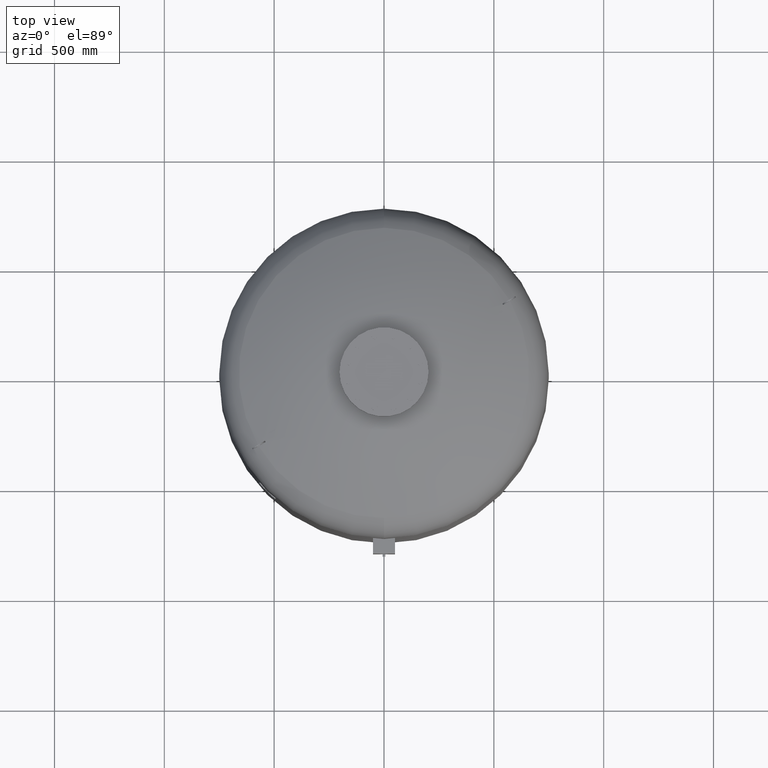
[diagram: clean part render]
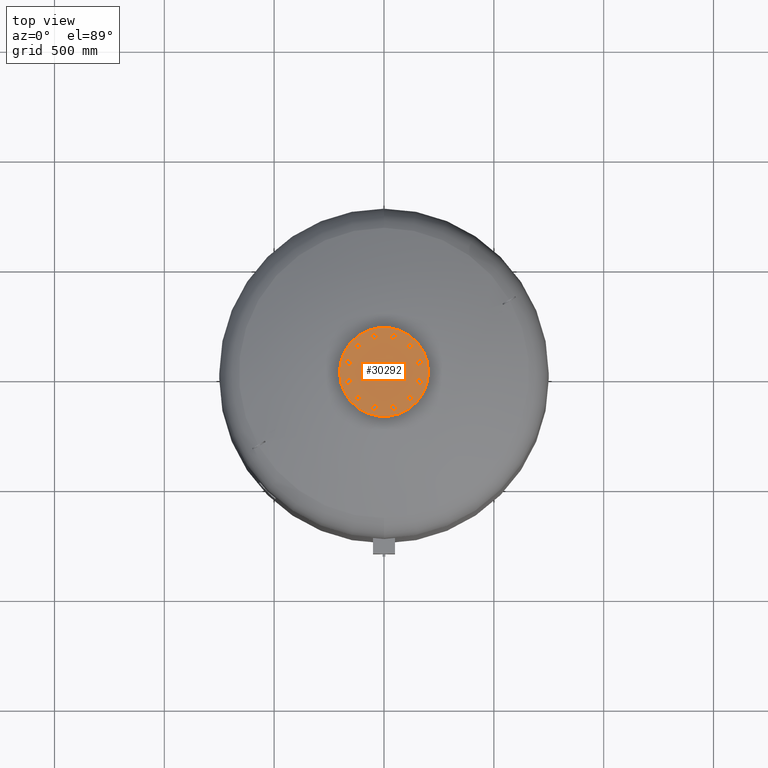
[diagram: same view with one face highlighted and labeled with its STEP entity id]
A machine part, top view. The second image highlights one B-rep face of the part: STEP entity #30292.
In plain terms, the highlighted planar face has unit normal (0, 0, 1).
Its self-contained STEP definition (entity closure, byte-faithful):
#21808=CARTESIAN_POINT('',(202.500000000000000,0.0,2520.0));
#21809=VERTEX_POINT('',#21808);
#21825=CARTESIAN_POINT('',(-202.500000000000000,2.479828E-014,2520.0));
#21826=VERTEX_POINT('',#21825);
#21833=CARTESIAN_POINT('',(0.0,0.0,2520.0));
#21834=DIRECTION('',(0.0,0.0,-1.0));
#21835=DIRECTION('',(1.0,0.0,0.0));
#21836=AXIS2_PLACEMENT_3D('',#21833,#21834,#21835);
#21837=CIRCLE('',#21836,202.500000000000000);
#21838=EDGE_CURVE('',#21826,#21809,#21837,.T.);
#27786=CARTESIAN_POINT('',(-157.729139400922860,-30.104983413641008,2520.0));
#27787=VERTEX_POINT('',#27786);
#27788=CARTESIAN_POINT('',(-148.288440171855850,-40.247625971983268,2520.0));
#27789=VERTEX_POINT('',#27788);
#27790=CARTESIAN_POINT('',(-157.729139400922860,-30.104983413641008,2520.0));
#27791=DIRECTION('',(0.681323780155013,-0.731982176419128,0.0));
#27792=VECTOR('',#27791,13.856406460551090);
#27793=LINE('',#27790,#27792);
#27794=EDGE_CURVE('',#27787,#27789,#27793,.T.);
#27826=CARTESIAN_POINT('',(-171.233275132485970,-33.209547496330110,2520.0));
#27827=VERTEX_POINT('',#27826);
#27828=CARTESIAN_POINT('',(-171.233275132485970,-33.209547496330110,2520.0));
#27829=DIRECTION('',(0.974577049973894,0.224052613607123,0.0));
#27830=VECTOR('',#27829,13.856406460551119);
#27831=LINE('',#27828,#27830);
#27832=EDGE_CURVE('',#27827,#27787,#27831,.T.);
#27857=CARTESIAN_POINT('',(-175.296711634982050,-46.456754137361422,2520.0));
#27858=VERTEX_POINT('',#27857);
#27859=CARTESIAN_POINT('',(-175.296711634982050,-46.456754137361422,2520.0));
#27860=DIRECTION('',(0.293253269818881,0.956034790026249,0.0));
#27861=VECTOR('',#27860,13.856406460551076);
#27862=LINE('',#27859,#27861);
#27863=EDGE_CURVE('',#27858,#27827,#27862,.T.);
#27888=CARTESIAN_POINT('',(-152.351876674351930,-53.494832613014587,2520.0));
#27889=VERTEX_POINT('',#27888);
#27890=CARTESIAN_POINT('',(-148.288440171855850,-40.247625971983268,2520.0));
#27891=DIRECTION('',(-0.293253269818881,-0.956034790026249,0.0));
#27892=VECTOR('',#27891,13.856406460551083);
#27893=LINE('',#27890,#27892);
#27894=EDGE_CURVE('',#27789,#27889,#27893,.T.);
#27919=CARTESIAN_POINT('',(-165.856012405915040,-56.599396695703689,2520.0));
#27920=VERTEX_POINT('',#27919);
#27921=CARTESIAN_POINT('',(-152.351876674351930,-53.494832613014587,2520.0));
#27922=DIRECTION('',(-0.974577049973894,-0.224052613607123,0.0));
#27923=VECTOR('',#27922,13.856406460551119);
#27924=LINE('',#27921,#27923);
#27925=EDGE_CURVE('',#27889,#27920,#27924,.T.);
#27950=CARTESIAN_POINT('',(-165.856012405915040,-56.599396695703689,2520.0));
#27951=DIRECTION('',(-0.681323780155012,0.731982176419129,0.0));
#27952=VECTOR('',#27951,13.856406460551096);
#27953=LINE('',#27950,#27952);
#27954=EDGE_CURVE('',#27920,#27858,#27953,.T.);
#27986=CARTESIAN_POINT('',(-121.544949931435720,-104.936250117183760,2520.0));
#27987=VERTEX_POINT('',#27986);
#27988=CARTESIAN_POINT('',(-108.297743290404380,-108.999686619679820,2520.0));
#27989=VERTEX_POINT('',#27988);
#27990=CARTESIAN_POINT('',(-121.544949931435720,-104.936250117183760,2520.0));
#27991=DIRECTION('',(0.956034790026250,-0.293253269818880,0.0));
#27992=VECTOR('',#27991,13.856406460551101);
#27993=LINE('',#27990,#27992);
#27994=EDGE_CURVE('',#27987,#27989,#27993,.T.);
#28026=CARTESIAN_POINT('',(-131.687592489777960,-114.376949346250780,2520.0));
#28027=VERTEX_POINT('',#28026);
#28028=CARTESIAN_POINT('',(-131.687592489777960,-114.376949346250780,2520.0));
#28029=DIRECTION('',(0.731982176419127,0.681323780155014,0.0));
#28030=VECTOR('',#28029,13.856406460551080);
#28031=LINE('',#28028,#28030);
#28032=EDGE_CURVE('',#28027,#27987,#28031,.T.);
#28057=CARTESIAN_POINT('',(-128.583028407088880,-127.881085077813880,2520.0));
#28058=VERTEX_POINT('',#28057);
#28059=CARTESIAN_POINT('',(-128.583028407088880,-127.881085077813880,2520.0));
#28060=DIRECTION('',(-0.224052613607122,0.974577049973894,0.0));
#28061=VECTOR('',#28060,13.856406460551099);
#28062=LINE('',#28059,#28061);
#28063=EDGE_CURVE('',#28058,#28027,#28062,.T.);
#28088=CARTESIAN_POINT('',(-105.193179207715300,-122.503822351242900,2520.0));
#28089=VERTEX_POINT('',#28088);
#28090=CARTESIAN_POINT('',(-108.297743290404380,-108.999686619679820,2520.0));
#28091=DIRECTION('',(0.224052613607122,-0.974577049973894,0.0));
#28092=VECTOR('',#28091,13.856406460551087);
#28093=LINE('',#28090,#28092);
#28094=EDGE_CURVE('',#27989,#28089,#28093,.T.);
#28119=CARTESIAN_POINT('',(-115.335821766057560,-131.944521580309950,2520.0));
#28120=VERTEX_POINT('',#28119);
#28121=CARTESIAN_POINT('',(-105.193179207715300,-122.503822351242900,2520.0));
#28122=DIRECTION('',(-0.731982176419127,-0.681323780155014,0.0));
#28123=VECTOR('',#28122,13.856406460551121);
#28124=LINE('',#28121,#28123);
#28125=EDGE_CURVE('',#28089,#28120,#28124,.T.);
#28150=CARTESIAN_POINT('',(-115.335821766057560,-131.944521580309950,2520.0));
#28151=DIRECTION('',(-0.956034790026249,0.293253269818881,0.0));
#28152=VECTOR('',#28151,13.856406460551076);
#28153=LINE('',#28150,#28152);
#28154=EDGE_CURVE('',#28120,#28058,#28153,.T.);
#28186=CARTESIAN_POINT('',(-52.792889283739193,-151.649933345076730,2520.0));
#28187=VERTEX_POINT('',#28186);
#28188=CARTESIAN_POINT('',(-39.288753552176118,-148.545369262387680,2520.0));
#28189=VERTEX_POINT('',#28188);
#28190=CARTESIAN_POINT('',(-52.792889283739193,-151.649933345076730,2520.0));
#28191=DIRECTION('',(0.974577049973894,0.224052613607120,0.0));
#28192=VECTOR('',#28191,13.856406460551073);
#28193=LINE('',#28190,#28192);
#28194=EDGE_CURVE('',#28187,#28189,#28193,.T.);
#28226=CARTESIAN_POINT('',(-56.856325786235274,-164.897139986108100,2520.0));
#28227=VERTEX_POINT('',#28226);
#28228=CARTESIAN_POINT('',(-56.856325786235274,-164.897139986108100,2520.0));
#28229=DIRECTION('',(0.293253269818881,0.956034790026249,0.0));
#28230=VECTOR('',#28229,13.856406460551133);
#28231=LINE('',#28228,#28230);
#28232=EDGE_CURVE('',#28227,#28187,#28231,.T.);
#28257=CARTESIAN_POINT('',(-47.415626557168267,-175.039782544450330,2520.0));
#28258=VERTEX_POINT('',#28257);
#28259=CARTESIAN_POINT('',(-47.415626557168267,-175.039782544450330,2520.0));
#28260=DIRECTION('',(-0.681323780155014,0.731982176419128,0.0));
#28261=VECTOR('',#28260,13.856406460551069);
#28262=LINE('',#28259,#28261);
#28263=EDGE_CURVE('',#28258,#28227,#28262,.T.);
#28288=CARTESIAN_POINT('',(-29.848054323109103,-158.688011820729910,2520.0));
#28289=VERTEX_POINT('',#28288);
#28290=CARTESIAN_POINT('',(-39.288753552176118,-148.545369262387680,2520.0));
#28291=DIRECTION('',(0.681323780155014,-0.731982176419127,0.0));
#28292=VECTOR('',#28291,13.856406460551076);
#28293=LINE('',#28290,#28292);
#28294=EDGE_CURVE('',#28189,#28289,#28293,.T.);
#28319=CARTESIAN_POINT('',(-33.911490825605156,-171.935218461761250,2520.0));
#28320=VERTEX_POINT('',#28319);
#28321=CARTESIAN_POINT('',(-29.848054323109103,-158.688011820729910,2520.0));
#28322=DIRECTION('',(-0.293253269818879,-0.956034790026250,0.0));
#28323=VECTOR('',#28322,13.856406460551097);
#28324=LINE('',#28321,#28323);
#28325=EDGE_CURVE('',#28289,#28320,#28324,.T.);
#28350=CARTESIAN_POINT('',(-33.911490825605156,-171.935218461761250,2520.0));
#28351=DIRECTION('',(-0.974577049973894,-0.224052613607121,0.0));
#28352=VECTOR('',#28351,13.856406460551113);
#28353=LINE('',#28350,#28352);
#28354=EDGE_CURVE('',#28320,#28258,#28353,.T.);
#28386=CARTESIAN_POINT('',(30.104983413641008,-157.729139400922860,2520.0));
#28387=VERTEX_POINT('',#28386);
#28388=CARTESIAN_POINT('',(40.247625971983268,-148.288440171855850,2520.0));
#28389=VERTEX_POINT('',#28388);
#28390=CARTESIAN_POINT('',(30.104983413641008,-157.729139400922860,2520.0));
#28391=DIRECTION('',(0.731982176419128,0.681323780155013,0.0));
#28392=VECTOR('',#28391,13.856406460551090);
#28393=LINE('',#28390,#28392);
#28394=EDGE_CURVE('',#28387,#28389,#28393,.T.);
#28426=CARTESIAN_POINT('',(33.209547496330110,-171.233275132485970,2520.0));
#28427=VERTEX_POINT('',#28426);
#28428=CARTESIAN_POINT('',(33.209547496330110,-171.233275132485970,2520.0));
#28429=DIRECTION('',(-0.224052613607123,0.974577049973894,0.0));
#28430=VECTOR('',#28429,13.856406460551119);
#28431=LINE('',#28428,#28430);
#28432=EDGE_CURVE('',#28427,#28387,#28431,.T.);
#28457=CARTESIAN_POINT('',(46.456754137361422,-175.296711634982050,2520.0));
#28458=VERTEX_POINT('',#28457);
#28459=CARTESIAN_POINT('',(46.456754137361422,-175.296711634982050,2520.0));
#28460=DIRECTION('',(-0.956034790026249,0.293253269818881,0.0));
#28461=VECTOR('',#28460,13.856406460551076);
#28462=LINE('',#28459,#28461);
#28463=EDGE_CURVE('',#28458,#28427,#28462,.T.);
#28488=CARTESIAN_POINT('',(53.494832613014587,-152.351876674351930,2520.0));
#28489=VERTEX_POINT('',#28488);
#28490=CARTESIAN_POINT('',(40.247625971983268,-148.288440171855850,2520.0));
#28491=DIRECTION('',(0.956034790026249,-0.293253269818881,0.0));
#28492=VECTOR('',#28491,13.856406460551083);
#28493=LINE('',#28490,#28492);
#28494=EDGE_CURVE('',#28389,#28489,#28493,.T.);
#28519=CARTESIAN_POINT('',(56.599396695703689,-165.856012405915040,2520.0));
#28520=VERTEX_POINT('',#28519);
#28521=CARTESIAN_POINT('',(53.494832613014587,-152.351876674351930,2520.0));
#28522=DIRECTION('',(0.224052613607123,-0.974577049973894,0.0));
#28523=VECTOR('',#28522,13.856406460551119);
#28524=LINE('',#28521,#28523);
#28525=EDGE_CURVE('',#28489,#28520,#28524,.T.);
#28550=CARTESIAN_POINT('',(56.599396695703689,-165.856012405915040,2520.0));
#28551=DIRECTION('',(-0.731982176419129,-0.681323780155012,0.0));
#28552=VECTOR('',#28551,13.856406460551096);
#28553=LINE('',#28550,#28552);
#28554=EDGE_CURVE('',#28520,#28458,#28553,.T.);
#28586=CARTESIAN_POINT('',(104.936250117183700,-121.544949931435750,2520.0));
#28587=VERTEX_POINT('',#28586);
#28588=CARTESIAN_POINT('',(108.999686619679760,-108.297743290404440,2520.0));
#28589=VERTEX_POINT('',#28588);
#28590=CARTESIAN_POINT('',(104.936250117183700,-121.544949931435750,2520.0));
#28591=DIRECTION('',(0.293253269818880,0.956034790026249,0.0));
#28592=VECTOR('',#28591,13.856406460551073);
#28593=LINE('',#28590,#28592);
#28594=EDGE_CURVE('',#28587,#28589,#28593,.T.);
#28626=CARTESIAN_POINT('',(114.376949346250730,-131.687592489778010,2520.0));
#28627=VERTEX_POINT('',#28626);
#28628=CARTESIAN_POINT('',(114.376949346250730,-131.687592489778010,2520.0));
#28629=DIRECTION('',(-0.681323780155013,0.731982176419128,0.0));
#28630=VECTOR('',#28629,13.856406460551101);
#28631=LINE('',#28628,#28630);
#28632=EDGE_CURVE('',#28627,#28587,#28631,.T.);
#28657=CARTESIAN_POINT('',(127.881085077813810,-128.583028407088930,2520.0));
#28658=VERTEX_POINT('',#28657);
#28659=CARTESIAN_POINT('',(127.881085077813810,-128.583028407088930,2520.0));
#28660=DIRECTION('',(-0.974577049973894,-0.224052613607122,0.0));
#28661=VECTOR('',#28660,13.856406460551087);
#28662=LINE('',#28659,#28661);
#28663=EDGE_CURVE('',#28658,#28627,#28662,.T.);
#28688=CARTESIAN_POINT('',(122.503822351242850,-105.193179207715360,2520.0));
#28689=VERTEX_POINT('',#28688);
#28690=CARTESIAN_POINT('',(108.999686619679760,-108.297743290404440,2520.0));
#28691=DIRECTION('',(0.974577049973894,0.224052613607122,0.0));
#28692=VECTOR('',#28691,13.856406460551087);
#28693=LINE('',#28690,#28692);
#28694=EDGE_CURVE('',#28589,#28689,#28693,.T.);
#28719=CARTESIAN_POINT('',(131.944521580309900,-115.335821766057620,2520.0));
#28720=VERTEX_POINT('',#28719);
#28721=CARTESIAN_POINT('',(122.503822351242850,-105.193179207715360,2520.0));
#28722=DIRECTION('',(0.681323780155014,-0.731982176419127,0.0));
#28723=VECTOR('',#28722,13.856406460551121);
#28724=LINE('',#28721,#28723);
#28725=EDGE_CURVE('',#28689,#28720,#28724,.T.);
#28750=CARTESIAN_POINT('',(131.944521580309900,-115.335821766057620,2520.0));
#28751=DIRECTION('',(-0.293253269818882,-0.956034790026249,0.0));
#28752=VECTOR('',#28751,13.856406460551081);
#28753=LINE('',#28750,#28752);
#28754=EDGE_CURVE('',#28720,#28658,#28753,.T.);
#28786=CARTESIAN_POINT('',(151.649933345076730,-52.792889283739214,2520.0));
#28787=VERTEX_POINT('',#28786);
#28788=CARTESIAN_POINT('',(148.545369262387650,-39.288753552176125,2520.0));
#28789=VERTEX_POINT('',#28788);
#28790=CARTESIAN_POINT('',(151.649933345076730,-52.792889283739214,2520.0));
#28791=DIRECTION('',(-0.224052613607122,0.974577049973894,0.0));
#28792=VECTOR('',#28791,13.856406460551092);
#28793=LINE('',#28790,#28792);
#28794=EDGE_CURVE('',#28787,#28789,#28793,.T.);
#28826=CARTESIAN_POINT('',(164.897139986108100,-56.856325786235296,2520.0));
#28827=VERTEX_POINT('',#28826);
#28828=CARTESIAN_POINT('',(164.897139986108100,-56.856325786235296,2520.0));
#28829=DIRECTION('',(-0.956034790026249,0.293253269818881,0.0));
#28830=VECTOR('',#28829,13.856406460551133);
#28831=LINE('',#28828,#28830);
#28832=EDGE_CURVE('',#28827,#28787,#28831,.T.);
#28857=CARTESIAN_POINT('',(175.039782544450300,-47.415626557168260,2520.0));
#28858=VERTEX_POINT('',#28857);
#28859=CARTESIAN_POINT('',(175.039782544450300,-47.415626557168260,2520.0));
#28860=DIRECTION('',(-0.731982176419126,-0.681323780155016,0.0));
#28861=VECTOR('',#28860,13.856406460551069);
#28862=LINE('',#28859,#28861);
#28863=EDGE_CURVE('',#28858,#28827,#28862,.T.);
#28888=CARTESIAN_POINT('',(158.688011820729910,-29.848054323109110,2520.0));
#28889=VERTEX_POINT('',#28888);
#28890=CARTESIAN_POINT('',(148.545369262387650,-39.288753552176125,2520.0));
#28891=DIRECTION('',(0.731982176419128,0.681323780155013,0.0));
#28892=VECTOR('',#28891,13.856406460551096);
#28893=LINE('',#28890,#28892);
#28894=EDGE_CURVE('',#28789,#28889,#28893,.T.);
#28919=CARTESIAN_POINT('',(171.935218461761250,-33.911490825605171,2520.0));
#28920=VERTEX_POINT('',#28919);
#28921=CARTESIAN_POINT('',(158.688011820729910,-29.848054323109110,2520.0));
#28922=DIRECTION('',(0.956034790026250,-0.293253269818880,0.0));
#28923=VECTOR('',#28922,13.856406460551101);
#28924=LINE('',#28921,#28923);
#28925=EDGE_CURVE('',#28889,#28920,#28924,.T.);
#28950=CARTESIAN_POINT('',(171.935218461761250,-33.911490825605171,2520.0));
#28951=DIRECTION('',(0.224052613607120,-0.974577049973894,0.0));
#28952=VECTOR('',#28951,13.856406460551087);
#28953=LINE('',#28950,#28952);
#28954=EDGE_CURVE('',#28920,#28858,#28953,.T.);
#28986=CARTESIAN_POINT('',(157.729139400922860,30.104983413640987,2520.0));
#28987=VERTEX_POINT('',#28986);
#28988=CARTESIAN_POINT('',(148.288440171855850,40.247625971983247,2520.0));
#28989=VERTEX_POINT('',#28988);
#28990=CARTESIAN_POINT('',(157.729139400922860,30.104983413640987,2520.0));
#28991=DIRECTION('',(-0.681323780155013,0.731982176419128,0.0));
#28992=VECTOR('',#28991,13.856406460551090);
#28993=LINE('',#28990,#28992);
#28994=EDGE_CURVE('',#28987,#28989,#28993,.T.);
#29026=CARTESIAN_POINT('',(171.233275132486000,33.209547496330096,2520.0));
#29027=VERTEX_POINT('',#29026);
#29028=CARTESIAN_POINT('',(171.233275132486000,33.209547496330096,2520.0));
#29029=DIRECTION('',(-0.974577049973894,-0.224052613607123,0.0));
#29030=VECTOR('',#29029,13.856406460551147);
#29031=LINE('',#29028,#29030);
#29032=EDGE_CURVE('',#29027,#28987,#29031,.T.);
#29057=CARTESIAN_POINT('',(175.296711634982050,46.456754137361401,2520.0));
#29058=VERTEX_POINT('',#29057);
#29059=CARTESIAN_POINT('',(175.296711634982050,46.456754137361401,2520.0));
#29060=DIRECTION('',(-0.293253269818880,-0.956034790026250,0.0));
#29061=VECTOR('',#29060,13.856406460551062);
#29062=LINE('',#29059,#29061);
#29063=EDGE_CURVE('',#29058,#29027,#29062,.T.);
#29088=CARTESIAN_POINT('',(152.351876674351960,53.494832613014580,2520.0));
#29089=VERTEX_POINT('',#29088);
#29090=CARTESIAN_POINT('',(148.288440171855850,40.247625971983247,2520.0));
#29091=DIRECTION('',(0.293253269818883,0.956034790026249,0.0));
#29092=VECTOR('',#29091,13.856406460551106);
#29093=LINE('',#29090,#29092);
#29094=EDGE_CURVE('',#28989,#29089,#29093,.T.);
#29119=CARTESIAN_POINT('',(165.856012405915070,56.599396695703646,2520.0));
#29120=VERTEX_POINT('',#29119);
#29121=CARTESIAN_POINT('',(152.351876674351960,53.494832613014580,2520.0));
#29122=DIRECTION('',(0.974577049973894,0.224052613607121,0.0));
#29123=VECTOR('',#29122,13.856406460551110);
#29124=LINE('',#29121,#29123);
#29125=EDGE_CURVE('',#29089,#29120,#29124,.T.);
#29150=CARTESIAN_POINT('',(165.856012405915070,56.599396695703646,2520.0));
#29151=DIRECTION('',(0.681323780155012,-0.731982176419129,0.0));
#29152=VECTOR('',#29151,13.856406460551062);
#29153=LINE('',#29150,#29152);
#29154=EDGE_CURVE('',#29120,#29058,#29153,.T.);
#29186=CARTESIAN_POINT('',(121.544949931435750,104.936250117183680,2520.0));
#29187=VERTEX_POINT('',#29186);
#29188=CARTESIAN_POINT('',(108.297743290404440,108.999686619679760,2520.0));
#29189=VERTEX_POINT('',#29188);
#29190=CARTESIAN_POINT('',(121.544949931435750,104.936250117183680,2520.0));
#29191=DIRECTION('',(-0.956034790026249,0.293253269818882,0.0));
#29192=VECTOR('',#29191,13.856406460551081);
#29193=LINE('',#29190,#29192);
#29194=EDGE_CURVE('',#29187,#29189,#29193,.T.);
#29226=CARTESIAN_POINT('',(131.687592489778010,114.376949346250730,2520.0));
#29227=VERTEX_POINT('',#29226);
#29228=CARTESIAN_POINT('',(131.687592489778010,114.376949346250730,2520.0));
#29229=DIRECTION('',(-0.731982176419127,-0.681323780155014,0.0));
#29230=VECTOR('',#29229,13.856406460551121);
#29231=LINE('',#29228,#29230);
#29232=EDGE_CURVE('',#29227,#29187,#29231,.T.);
#29257=CARTESIAN_POINT('',(128.583028407088930,127.881085077813790,2520.0));
#29258=VERTEX_POINT('',#29257);
#29259=CARTESIAN_POINT('',(128.583028407088930,127.881085077813790,2520.0));
#29260=DIRECTION('',(0.224052613607122,-0.974577049973894,0.0));
#29261=VECTOR('',#29260,13.856406460551071);
#29262=LINE('',#29259,#29261);
#29263=EDGE_CURVE('',#29258,#29227,#29262,.T.);
#29288=CARTESIAN_POINT('',(105.193179207715360,122.503822351242850,2520.0));
#29289=VERTEX_POINT('',#29288);
#29290=CARTESIAN_POINT('',(108.297743290404440,108.999686619679760,2520.0));
#29291=DIRECTION('',(-0.224052613607122,0.974577049973894,0.0));
#29292=VECTOR('',#29291,13.856406460551087);
#29293=LINE('',#29290,#29292);
#29294=EDGE_CURVE('',#29189,#29289,#29293,.T.);
#29319=CARTESIAN_POINT('',(115.335821766057620,131.944521580309900,2520.0));
#29320=VERTEX_POINT('',#29319);
#29321=CARTESIAN_POINT('',(105.193179207715360,122.503822351242850,2520.0));
#29322=DIRECTION('',(0.731982176419127,0.681323780155014,0.0));
#29323=VECTOR('',#29322,13.856406460551121);
#29324=LINE('',#29321,#29323);
#29325=EDGE_CURVE('',#29289,#29320,#29324,.T.);
#29350=CARTESIAN_POINT('',(115.335821766057620,131.944521580309900,2520.0));
#29351=DIRECTION('',(0.956034790026249,-0.293253269818883,0.0));
#29352=VECTOR('',#29351,13.856406460551085);
#29353=LINE('',#29350,#29352);
#29354=EDGE_CURVE('',#29320,#29258,#29353,.T.);
#29386=CARTESIAN_POINT('',(52.792889283739228,151.649933345076730,2520.0));
#29387=VERTEX_POINT('',#29386);
#29388=CARTESIAN_POINT('',(39.288753552176132,148.545369262387680,2520.0));
#29389=VERTEX_POINT('',#29388);
#29390=CARTESIAN_POINT('',(52.792889283739228,151.649933345076730,2520.0));
#29391=DIRECTION('',(-0.974577049973894,-0.224052613607120,0.0));
#29392=VECTOR('',#29391,13.856406460551094);
#29393=LINE('',#29390,#29392);
#29394=EDGE_CURVE('',#29387,#29389,#29393,.T.);
#29426=CARTESIAN_POINT('',(56.856325786235296,164.897139986108100,2520.0));
#29427=VERTEX_POINT('',#29426);
#29428=CARTESIAN_POINT('',(56.856325786235296,164.897139986108100,2520.0));
#29429=DIRECTION('',(-0.293253269818880,-0.956034790026250,0.0));
#29430=VECTOR('',#29429,13.856406460551129);
#29431=LINE('',#29428,#29430);
#29432=EDGE_CURVE('',#29427,#29387,#29431,.T.);
#29457=CARTESIAN_POINT('',(47.415626557168281,175.039782544450300,2520.0));
#29458=VERTEX_POINT('',#29457);
#29459=CARTESIAN_POINT('',(47.415626557168281,175.039782544450300,2520.0));
#29460=DIRECTION('',(0.681323780155015,-0.731982176419126,0.0));
#29461=VECTOR('',#29460,13.856406460551055);
#29462=LINE('',#29459,#29461);
#29463=EDGE_CURVE('',#29458,#29427,#29462,.T.);
#29488=CARTESIAN_POINT('',(29.848054323109121,158.688011820729910,2520.0));
#29489=VERTEX_POINT('',#29488);
#29490=CARTESIAN_POINT('',(39.288753552176132,148.545369262387680,2520.0));
#29491=DIRECTION('',(-0.681323780155014,0.731982176419127,0.0));
#29492=VECTOR('',#29491,13.856406460551073);
#29493=LINE('',#29490,#29492);
#29494=EDGE_CURVE('',#29389,#29489,#29493,.T.);
#29519=CARTESIAN_POINT('',(33.911490825605199,171.935218461761280,2520.0));
#29520=VERTEX_POINT('',#29519);
#29521=CARTESIAN_POINT('',(29.848054323109121,158.688011820729910,2520.0));
#29522=DIRECTION('',(0.293253269818880,0.956034790026249,0.0));
#29523=VECTOR('',#29522,13.856406460551133);
#29524=LINE('',#29521,#29523);
#29525=EDGE_CURVE('',#29489,#29520,#29524,.T.);
#29550=CARTESIAN_POINT('',(33.911490825605199,171.935218461761280,2520.0));
#29551=DIRECTION('',(0.974577049973895,0.224052613607118,0.0));
#29552=VECTOR('',#29551,13.856406460551074);
#29553=LINE('',#29550,#29552);
#29554=EDGE_CURVE('',#29520,#29458,#29553,.T.);
#29586=CARTESIAN_POINT('',(-30.104983413640952,157.729139400922890,2520.0));
#29587=VERTEX_POINT('',#29586);
#29588=CARTESIAN_POINT('',(-40.247625971983211,148.288440171855880,2520.0));
#29589=VERTEX_POINT('',#29588);
#29590=CARTESIAN_POINT('',(-30.104983413640952,157.729139400922890,2520.0));
#29591=DIRECTION('',(-0.731982176419128,-0.681323780155013,0.0));
#29592=VECTOR('',#29591,13.856406460551090);
#29593=LINE('',#29590,#29592);
#29594=EDGE_CURVE('',#29587,#29589,#29593,.T.);
#29626=CARTESIAN_POINT('',(-33.209547496330039,171.233275132486000,2520.0));
#29627=VERTEX_POINT('',#29626);
#29628=CARTESIAN_POINT('',(-33.209547496330039,171.233275132486000,2520.0));
#29629=DIRECTION('',(0.224052613607122,-0.974577049973894,0.0));
#29630=VECTOR('',#29629,13.856406460551115);
#29631=LINE('',#29628,#29630);
#29632=EDGE_CURVE('',#29627,#29587,#29631,.T.);
#29657=CARTESIAN_POINT('',(-46.456754137361351,175.296711634982070,2520.0));
#29658=VERTEX_POINT('',#29657);
#29659=CARTESIAN_POINT('',(-46.456754137361351,175.296711634982070,2520.0));
#29660=DIRECTION('',(0.956034790026249,-0.293253269818881,0.0));
#29661=VECTOR('',#29660,13.856406460551076);
#29662=LINE('',#29659,#29661);
#29663=EDGE_CURVE('',#29658,#29627,#29662,.T.);
#29688=CARTESIAN_POINT('',(-53.494832613014523,152.351876674351960,2520.0));
#29689=VERTEX_POINT('',#29688);
#29690=CARTESIAN_POINT('',(-40.247625971983211,148.288440171855880,2520.0));
#29691=DIRECTION('',(-0.956034790026249,0.293253269818881,0.0));
#29692=VECTOR('',#29691,13.856406460551076);
#29693=LINE('',#29690,#29692);
#29694=EDGE_CURVE('',#29589,#29689,#29693,.T.);
#29719=CARTESIAN_POINT('',(-56.599396695703625,165.856012405915070,2520.0));
#29720=VERTEX_POINT('',#29719);
#29721=CARTESIAN_POINT('',(-53.494832613014523,152.351876674351960,2520.0));
#29722=DIRECTION('',(-0.224052613607123,0.974577049973894,0.0));
#29723=VECTOR('',#29722,13.856406460551119);
#29724=LINE('',#29721,#29723);
#29725=EDGE_CURVE('',#29689,#29720,#29724,.T.);
#29750=CARTESIAN_POINT('',(-56.599396695703625,165.856012405915070,2520.0));
#29751=DIRECTION('',(0.731982176419129,0.681323780155012,0.0));
#29752=VECTOR('',#29751,13.856406460551101);
#29753=LINE('',#29750,#29752);
#29754=EDGE_CURVE('',#29720,#29658,#29753,.T.);
#29786=CARTESIAN_POINT('',(-104.936250117183660,121.544949931435800,2520.0));
#29787=VERTEX_POINT('',#29786);
#29788=CARTESIAN_POINT('',(-108.999686619679750,108.297743290404470,2520.0));
#29789=VERTEX_POINT('',#29788);
#29790=CARTESIAN_POINT('',(-104.936250117183660,121.544949931435800,2520.0));
#29791=DIRECTION('',(-0.293253269818882,-0.956034790026249,0.0));
#29792=VECTOR('',#29791,13.856406460551094);
#29793=LINE('',#29790,#29792);
#29794=EDGE_CURVE('',#29787,#29789,#29793,.T.);
#29826=CARTESIAN_POINT('',(-114.376949346250710,131.687592489778040,2520.0));
#29827=VERTEX_POINT('',#29826);
#29828=CARTESIAN_POINT('',(-114.376949346250710,131.687592489778040,2520.0));
#29829=DIRECTION('',(0.681323780155015,-0.731982176419126,0.0));
#29830=VECTOR('',#29829,13.856406460551110);
#29831=LINE('',#29828,#29830);
#29832=EDGE_CURVE('',#29827,#29787,#29831,.T.);
#29857=CARTESIAN_POINT('',(-127.881085077813760,128.583028407088960,2520.0));
#29858=VERTEX_POINT('',#29857);
#29859=CARTESIAN_POINT('',(-127.881085077813760,128.583028407088960,2520.0));
#29860=DIRECTION('',(0.974577049973894,0.224052613607122,0.0));
#29861=VECTOR('',#29860,13.856406460551058);
#29862=LINE('',#29859,#29861);
#29863=EDGE_CURVE('',#29858,#29827,#29862,.T.);
#29888=CARTESIAN_POINT('',(-122.503822351242830,105.193179207715390,2520.0));
#29889=VERTEX_POINT('',#29888);
#29890=CARTESIAN_POINT('',(-108.999686619679750,108.297743290404470,2520.0));
#29891=DIRECTION('',(-0.974577049973894,-0.224052613607122,0.0));
#29892=VECTOR('',#29891,13.856406460551087);
#29893=LINE('',#29890,#29892);
#29894=EDGE_CURVE('',#29789,#29889,#29893,.T.);
#29919=CARTESIAN_POINT('',(-131.944521580309870,115.335821766057650,2520.0));
#29920=VERTEX_POINT('',#29919);
#29921=CARTESIAN_POINT('',(-122.503822351242830,105.193179207715390,2520.0));
#29922=DIRECTION('',(-0.681323780155014,0.731982176419127,0.0));
#29923=VECTOR('',#29922,13.856406460551110);
#29924=LINE('',#29921,#29923);
#29925=EDGE_CURVE('',#29889,#29920,#29924,.T.);
#29950=CARTESIAN_POINT('',(-131.944521580309870,115.335821766057650,2520.0));
#29951=DIRECTION('',(0.293253269818883,0.956034790026249,0.0));
#29952=VECTOR('',#29951,13.856406460551085);
#29953=LINE('',#29950,#29952);
#29954=EDGE_CURVE('',#29920,#29858,#29953,.T.);
#29986=CARTESIAN_POINT('',(-151.649933345076730,52.792889283739228,2520.0));
#29987=VERTEX_POINT('',#29986);
#29988=CARTESIAN_POINT('',(-148.545369262387650,39.288753552176139,2520.0));
#29989=VERTEX_POINT('',#29988);
#29990=CARTESIAN_POINT('',(-151.649933345076730,52.792889283739228,2520.0));
#29991=DIRECTION('',(0.224052613607122,-0.974577049973894,0.0));
#29992=VECTOR('',#29991,13.856406460551092);
#29993=LINE('',#29990,#29992);
#29994=EDGE_CURVE('',#29987,#29989,#29993,.T.);
#30026=CARTESIAN_POINT('',(-164.897139986108070,56.856325786235303,2520.0));
#30027=VERTEX_POINT('',#30026);
#30028=CARTESIAN_POINT('',(-164.897139986108070,56.856325786235303,2520.0));
#30029=DIRECTION('',(0.956034790026249,-0.293253269818881,0.0));
#30030=VECTOR('',#30029,13.856406460551105);
#30031=LINE('',#30028,#30030);
#30032=EDGE_CURVE('',#30027,#29987,#30031,.T.);
#30057=CARTESIAN_POINT('',(-175.039782544450300,47.415626557168295,2520.0));
#30058=VERTEX_POINT('',#30057);
#30059=CARTESIAN_POINT('',(-175.039782544450300,47.415626557168295,2520.0));
#30060=DIRECTION('',(0.731982176419128,0.681323780155014,0.0));
#30061=VECTOR('',#30060,13.856406460551069);
#30062=LINE('',#30059,#30061);
#30063=EDGE_CURVE('',#30058,#30027,#30062,.T.);
#30088=CARTESIAN_POINT('',(-158.688011820729910,29.848054323109132,2520.0));
#30089=VERTEX_POINT('',#30088);
#30090=CARTESIAN_POINT('',(-148.545369262387650,39.288753552176139,2520.0));
#30091=DIRECTION('',(-0.731982176419128,-0.681323780155013,0.0));
#30092=VECTOR('',#30091,13.856406460551090);
#30093=LINE('',#30090,#30092);
#30094=EDGE_CURVE('',#29989,#30089,#30093,.T.);
#30119=CARTESIAN_POINT('',(-171.935218461761250,33.911490825605206,2520.0));
#30120=VERTEX_POINT('',#30119);
#30121=CARTESIAN_POINT('',(-158.688011820729910,29.848054323109132,2520.0));
#30122=DIRECTION('',(-0.956034790026249,0.293253269818881,0.0));
#30123=VECTOR('',#30122,13.856406460551105);
#30124=LINE('',#30121,#30123);
#30125=EDGE_CURVE('',#30089,#30120,#30124,.T.);
#30150=CARTESIAN_POINT('',(-171.935218461761250,33.911490825605206,2520.0));
#30151=DIRECTION('',(-0.224052613607120,0.974577049973894,0.0));
#30152=VECTOR('',#30151,13.856406460551087);
#30153=LINE('',#30150,#30152);
#30154=EDGE_CURVE('',#30120,#30058,#30153,.T.);
#30181=CARTESIAN_POINT('',(101.250000000000000,0.0,2520.0));
#30182=DIRECTION('',(0.0,0.0,1.0));
#30183=DIRECTION('',(0.0,-1.0,0.0));
#30184=AXIS2_PLACEMENT_3D('',#30181,#30182,#30183);
#30185=PLANE('',#30184);
#30186=CARTESIAN_POINT('',(0.0,0.0,2520.0));
#30187=DIRECTION('',(0.0,0.0,-1.0));
#30188=DIRECTION('',(1.0,0.0,0.0));
#30189=AXIS2_PLACEMENT_3D('',#30186,#30187,#30188);
#30190=CIRCLE('',#30189,202.500000000000000);
#30191=EDGE_CURVE('',#21809,#21826,#30190,.T.);
#30192=ORIENTED_EDGE('',*,*,#30191,.F.);
#30193=ORIENTED_EDGE('',*,*,#21838,.F.);
#30194=EDGE_LOOP('',(#30192,#30193));
#30195=FACE_OUTER_BOUND('',#30194,.T.);
#30196=ORIENTED_EDGE('',*,*,#27794,.T.);
#30197=ORIENTED_EDGE('',*,*,#27894,.T.);
#30198=ORIENTED_EDGE('',*,*,#27925,.T.);
#30199=ORIENTED_EDGE('',*,*,#27954,.T.);
#30200=ORIENTED_EDGE('',*,*,#27863,.T.);
#30201=ORIENTED_EDGE('',*,*,#27832,.T.);
#30202=EDGE_LOOP('',(#30196,#30197,#30198,#30199,#30200,#30201));
#30203=FACE_BOUND('',#30202,.T.);
#30204=ORIENTED_EDGE('',*,*,#27994,.T.);
#30205=ORIENTED_EDGE('',*,*,#28094,.T.);
#30206=ORIENTED_EDGE('',*,*,#28125,.T.);
#30207=ORIENTED_EDGE('',*,*,#28154,.T.);
#30208=ORIENTED_EDGE('',*,*,#28063,.T.);
#30209=ORIENTED_EDGE('',*,*,#28032,.T.);
#30210=EDGE_LOOP('',(#30204,#30205,#30206,#30207,#30208,#30209));
#30211=FACE_BOUND('',#30210,.T.);
#30212=ORIENTED_EDGE('',*,*,#28194,.T.);
#30213=ORIENTED_EDGE('',*,*,#28294,.T.);
#30214=ORIENTED_EDGE('',*,*,#28325,.T.);
#30215=ORIENTED_EDGE('',*,*,#28354,.T.);
#30216=ORIENTED_EDGE('',*,*,#28263,.T.);
#30217=ORIENTED_EDGE('',*,*,#28232,.T.);
#30218=EDGE_LOOP('',(#30212,#30213,#30214,#30215,#30216,#30217));
#30219=FACE_BOUND('',#30218,.T.);
#30220=ORIENTED_EDGE('',*,*,#28394,.T.);
#30221=ORIENTED_EDGE('',*,*,#28494,.T.);
#30222=ORIENTED_EDGE('',*,*,#28525,.T.);
#30223=ORIENTED_EDGE('',*,*,#28554,.T.);
#30224=ORIENTED_EDGE('',*,*,#28463,.T.);
#30225=ORIENTED_EDGE('',*,*,#28432,.T.);
#30226=EDGE_LOOP('',(#30220,#30221,#30222,#30223,#30224,#30225));
#30227=FACE_BOUND('',#30226,.T.);
#30228=ORIENTED_EDGE('',*,*,#28594,.T.);
#30229=ORIENTED_EDGE('',*,*,#28694,.T.);
#30230=ORIENTED_EDGE('',*,*,#28725,.T.);
#30231=ORIENTED_EDGE('',*,*,#28754,.T.);
#30232=ORIENTED_EDGE('',*,*,#28663,.T.);
#30233=ORIENTED_EDGE('',*,*,#28632,.T.);
#30234=EDGE_LOOP('',(#30228,#30229,#30230,#30231,#30232,#30233));
#30235=FACE_BOUND('',#30234,.T.);
#30236=ORIENTED_EDGE('',*,*,#28794,.T.);
#30237=ORIENTED_EDGE('',*,*,#28894,.T.);
#30238=ORIENTED_EDGE('',*,*,#28925,.T.);
#30239=ORIENTED_EDGE('',*,*,#28954,.T.);
#30240=ORIENTED_EDGE('',*,*,#28863,.T.);
#30241=ORIENTED_EDGE('',*,*,#28832,.T.);
#30242=EDGE_LOOP('',(#30236,#30237,#30238,#30239,#30240,#30241));
#30243=FACE_BOUND('',#30242,.T.);
#30244=ORIENTED_EDGE('',*,*,#28994,.T.);
#30245=ORIENTED_EDGE('',*,*,#29094,.T.);
#30246=ORIENTED_EDGE('',*,*,#29125,.T.);
#30247=ORIENTED_EDGE('',*,*,#29154,.T.);
#30248=ORIENTED_EDGE('',*,*,#29063,.T.);
#30249=ORIENTED_EDGE('',*,*,#29032,.T.);
#30250=EDGE_LOOP('',(#30244,#30245,#30246,#30247,#30248,#30249));
#30251=FACE_BOUND('',#30250,.T.);
#30252=ORIENTED_EDGE('',*,*,#29194,.T.);
#30253=ORIENTED_EDGE('',*,*,#29294,.T.);
#30254=ORIENTED_EDGE('',*,*,#29325,.T.);
#30255=ORIENTED_EDGE('',*,*,#29354,.T.);
#30256=ORIENTED_EDGE('',*,*,#29263,.T.);
#30257=ORIENTED_EDGE('',*,*,#29232,.T.);
#30258=EDGE_LOOP('',(#30252,#30253,#30254,#30255,#30256,#30257));
#30259=FACE_BOUND('',#30258,.T.);
#30260=ORIENTED_EDGE('',*,*,#29394,.T.);
#30261=ORIENTED_EDGE('',*,*,#29494,.T.);
#30262=ORIENTED_EDGE('',*,*,#29525,.T.);
#30263=ORIENTED_EDGE('',*,*,#29554,.T.);
#30264=ORIENTED_EDGE('',*,*,#29463,.T.);
#30265=ORIENTED_EDGE('',*,*,#29432,.T.);
#30266=EDGE_LOOP('',(#30260,#30261,#30262,#30263,#30264,#30265));
#30267=FACE_BOUND('',#30266,.T.);
#30268=ORIENTED_EDGE('',*,*,#29594,.T.);
#30269=ORIENTED_EDGE('',*,*,#29694,.T.);
#30270=ORIENTED_EDGE('',*,*,#29725,.T.);
#30271=ORIENTED_EDGE('',*,*,#29754,.T.);
#30272=ORIENTED_EDGE('',*,*,#29663,.T.);
#30273=ORIENTED_EDGE('',*,*,#29632,.T.);
#30274=EDGE_LOOP('',(#30268,#30269,#30270,#30271,#30272,#30273));
#30275=FACE_BOUND('',#30274,.T.);
#30276=ORIENTED_EDGE('',*,*,#29794,.T.);
#30277=ORIENTED_EDGE('',*,*,#29894,.T.);
#30278=ORIENTED_EDGE('',*,*,#29925,.T.);
#30279=ORIENTED_EDGE('',*,*,#29954,.T.);
#30280=ORIENTED_EDGE('',*,*,#29863,.T.);
#30281=ORIENTED_EDGE('',*,*,#29832,.T.);
#30282=EDGE_LOOP('',(#30276,#30277,#30278,#30279,#30280,#30281));
#30283=FACE_BOUND('',#30282,.T.);
#30284=ORIENTED_EDGE('',*,*,#29994,.T.);
#30285=ORIENTED_EDGE('',*,*,#30094,.T.);
#30286=ORIENTED_EDGE('',*,*,#30125,.T.);
#30287=ORIENTED_EDGE('',*,*,#30154,.T.);
#30288=ORIENTED_EDGE('',*,*,#30063,.T.);
#30289=ORIENTED_EDGE('',*,*,#30032,.T.);
#30290=EDGE_LOOP('',(#30284,#30285,#30286,#30287,#30288,#30289));
#30291=FACE_BOUND('',#30290,.T.);
#30292=ADVANCED_FACE('',(#30195,#30203,#30211,#30219,#30227,#30235,#30243,#30251,#30259,#30267,#30275,#30283,#30291),#30185,.T.);